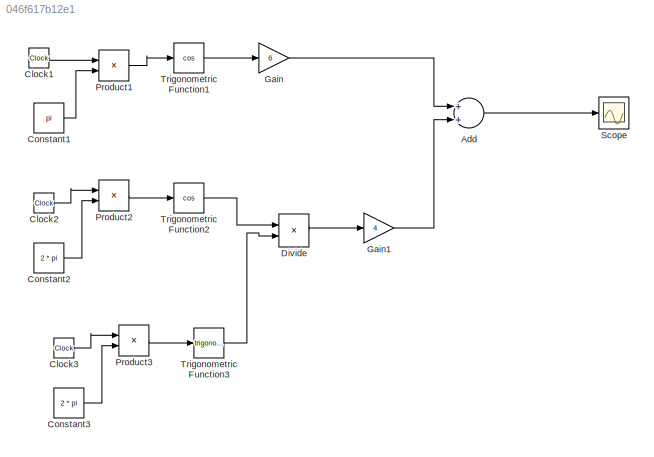
MODEL slx_046f617b12e1
KIND model
CONFIG AbsTol = auto
CONFIG EnableMultiTasking = off
CONFIG FixedStep = auto
CONFIG MaxStep = auto
CONFIG MinStep = auto
CONFIG RelTol = 1e-3
CONFIG SampleTimeConstraint = Unconstrained
CONFIG Solver = VariableStepAuto
CONFIG SolverName = VariableStepAuto
CONFIG StartTime = 0.0
CONFIG StopTime = 10.0
BLOCK [Sum] Add
  InputSameDT = off
  OutDataTypeStr = Inherit: Inherit via internal rule
  Ports = [2, 1]
  SaturateOnIntegerOverflow = off
BLOCK [Clock] Clock1
  DisplayTime = on
BLOCK [Clock] Clock2
  DisplayTime = on
BLOCK [Clock] Clock3
  DisplayTime = on
BLOCK [Constant] Constant1
  Value = pi
BLOCK [Constant] Constant2
  Value = 2 * pi
BLOCK [Constant] Constant3
  Value = 2 * pi
BLOCK [Product] Divide
  InputSameDT = off
  Inputs = */
  OutDataTypeStr = Inherit: Inherit via internal rule
  Ports = [2, 1]
  RndMeth = Floor
  SaturateOnIntegerOverflow = off
BLOCK [Gain] Gain
  Gain = 6
  OutDataTypeStr = Inherit: Inherit via internal rule
  ParamDataTypeStr = Inherit: Inherit via internal rule
  SaturateOnIntegerOverflow = off
BLOCK [Gain] Gain1
  Gain = 4
  OutDataTypeStr = Inherit: Inherit via internal rule
  ParamDataTypeStr = Inherit: Inherit via internal rule
  SaturateOnIntegerOverflow = off
BLOCK [Product] Product1
  InputSameDT = off
  OutDataTypeStr = Inherit: Inherit via internal rule
  Ports = [2, 1]
  RndMeth = Floor
  SaturateOnIntegerOverflow = off
BLOCK [Product] Product2
  InputSameDT = off
  OutDataTypeStr = Inherit: Inherit via internal rule
  Ports = [2, 1]
  RndMeth = Floor
  SaturateOnIntegerOverflow = off
BLOCK [Product] Product3
  InputSameDT = off
  OutDataTypeStr = Inherit: Inherit via internal rule
  Ports = [2, 1]
  RndMeth = Floor
  SaturateOnIntegerOverflow = off
BLOCK [Scope] Scope
  Floating = off
  NumInputPorts = 1
  Ports = [1]
  ScopeSpecificationString = Simulink.scopes.TimeScopeBlockCfg('CurrentConfiguration', extmgr.ConfigurationSet(extmgr.Configuration('Core','General UI',true),extmgr.Configuration('Core','Source UI',true),extmgr.Configuration('Sources','WiredSimulink',true),extmgr.Configuration('Visuals','Time Domain',true,'SerializedDisplays',{struct('MinYLimReal','-18372644272344800.00000','MaxYLimReal','2041404919149429.75','YLabelReal','',...<+1495ch>
BLOCK [Trigonometry] Trigonometric Function1
  Operator = cos
  Ports = [1, 1]
BLOCK [Trigonometry] Trigonometric Function2
  Operator = cos
  Ports = [1, 1]
BLOCK [Trigonometry] Trigonometric Function3
  Ports = [1, 1]
LINE Add:1 -> Scope:1
LINE Clock1:1 -> Product1:1
LINE Clock2:1 -> Product2:1
LINE Clock3:1 -> Product3:1
LINE Constant1:1 -> Product1:2
LINE Constant2:1 -> Product2:2
LINE Constant3:1 -> Product3:2
LINE Divide:1 -> Gain1:1
LINE Gain1:1 -> Add:2
LINE Gain:1 -> Add:1
LINE Product1:1 -> Trigonometric Function1:1
LINE Product2:1 -> Trigonometric Function2:1
LINE Product3:1 -> Trigonometric Function3:1
LINE Trigonometric Function1:1 -> Gain:1
LINE Trigonometric Function2:1 -> Divide:1
LINE Trigonometric Function3:1 -> Divide:2
